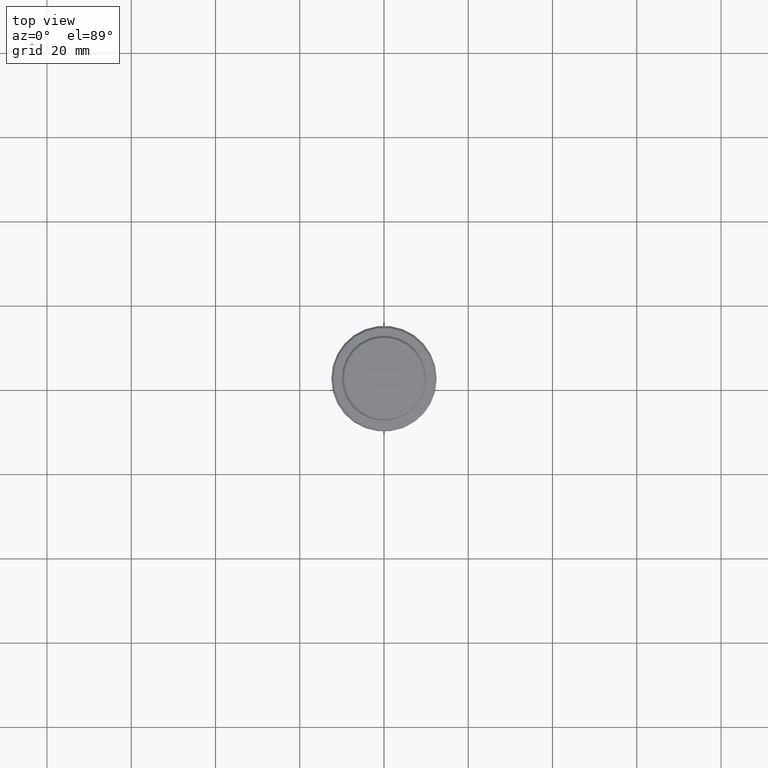
[diagram: clean part render]
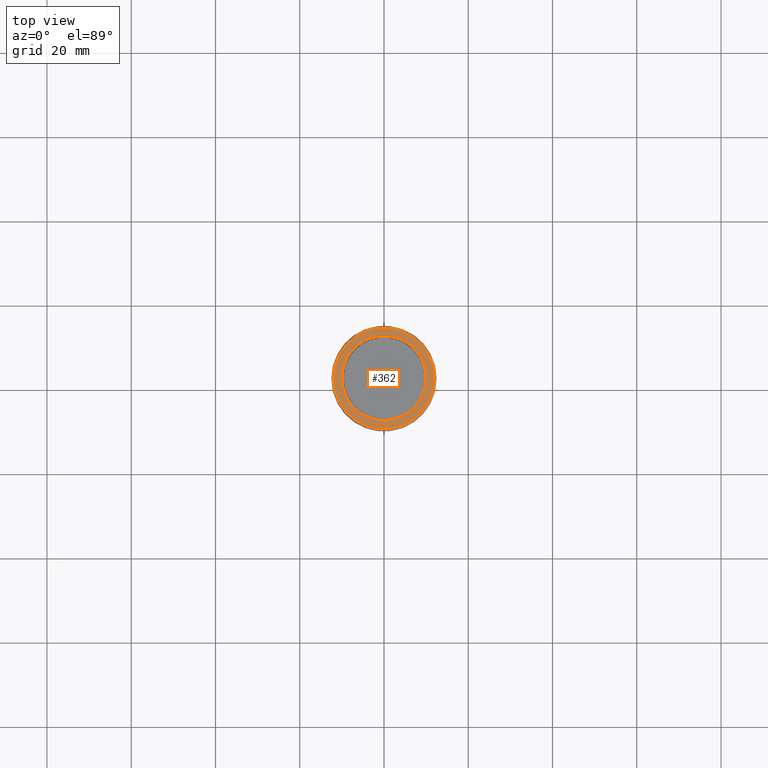
[diagram: same view with one face highlighted and labeled with its STEP entity id]
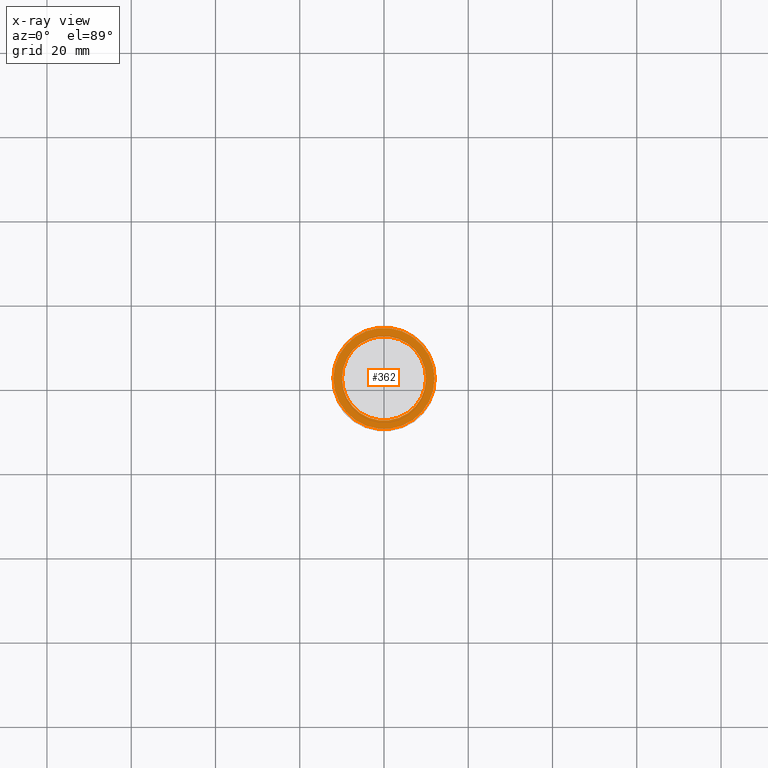
[diagram: x-ray of the same camera — body ghosted, the highlighted face saturated]
A machine part, top view. The second image highlights one B-rep face of the part: STEP entity #362.
The next image is the same camera in x-ray: the body ghosted, the highlighted face saturated — about 0% of this face is hidden behind the body in this view.
In plain terms, the highlighted planar face has unit normal (0, -0, 1).
Its self-contained STEP definition (entity closure, byte-faithful):
#8 = FACE_OUTER_BOUND ( 'NONE', #523, .T. ) ;
#18 = CARTESIAN_POINT ( 'NONE',  ( 9.999999999999992895, 0.000000000000000000, -9.000000000000000000 ) ) ;
#31 = DIRECTION ( 'NONE',  ( 0.000000000000000000, -0.000000000000000000, 1.000000000000000000 ) ) ;
#172 = DIRECTION ( 'NONE',  ( 0.000000000000000000, 0.000000000000000000, -1.000000000000000000 ) ) ;
#192 = EDGE_CURVE ( 'NONE', #1192, #1247, #440, .T. ) ;
#221 = CARTESIAN_POINT ( 'NONE',  ( 0.000000000000000000, 0.000000000000000000, -9.000000000000000000 ) ) ;
#250 = DIRECTION ( 'NONE',  ( -0.000000000000000000, -0.000000000000000000, 1.000000000000000000 ) ) ;
#270 = DIRECTION ( 'NONE',  ( 1.000000000000000000, 0.000000000000000000, 0.000000000000000000 ) ) ;
#299 = ORIENTED_EDGE ( 'NONE', *, *, #963, .T. ) ;
#323 = CARTESIAN_POINT ( 'NONE',  ( -9.999999999999992895, 1.224646799147352468E-15, -9.000000000000000000 ) ) ;
#362 = ADVANCED_FACE ( 'NONE', ( #8, #1003 ), #887, .T. ) ;
#397 = EDGE_CURVE ( 'NONE', #1036, #1339, #537, .T. ) ;
#399 = AXIS2_PLACEMENT_3D ( 'NONE', #221, #172, #645 ) ;
#427 = DIRECTION ( 'NONE',  ( 1.000000000000000000, 0.000000000000000000, 0.000000000000000000 ) ) ;
#440 = CIRCLE ( 'NONE', #399, 9.999999999999992895 ) ;
#505 = ORIENTED_EDGE ( 'NONE', *, *, #192, .T. ) ;
#523 = EDGE_LOOP ( 'NONE', ( #299, #1090 ) ) ;
#537 = CIRCLE ( 'NONE', #584, 12.00000000000001066 ) ;
#584 = AXIS2_PLACEMENT_3D ( 'NONE', #1008, #250, #684 ) ;
#621 = CARTESIAN_POINT ( 'NONE',  ( 12.00000000000001066, 1.500192328955508326E-15, -9.000000000000000000 ) ) ;
#645 = DIRECTION ( 'NONE',  ( 1.000000000000000000, 0.000000000000000000, 0.000000000000000000 ) ) ;
#665 = CARTESIAN_POINT ( 'NONE',  ( 0.000000000000000000, 9.499999999999992895, -9.000000000000000000 ) ) ;
#684 = DIRECTION ( 'NONE',  ( 1.000000000000000000, 0.000000000000000000, 0.000000000000000000 ) ) ;
#691 = EDGE_CURVE ( 'NONE', #1247, #1192, #906, .T. ) ;
#740 = AXIS2_PLACEMENT_3D ( 'NONE', #665, #31, #1340 ) ;
#797 = CARTESIAN_POINT ( 'NONE',  ( -12.00000000000001066, 0.000000000000000000, -9.000000000000000000 ) ) ;
#887 = PLANE ( 'NONE',  #740 ) ;
#894 = ORIENTED_EDGE ( 'NONE', *, *, #691, .T. ) ;
#906 = CIRCLE ( 'NONE', #1274, 9.999999999999992895 ) ;
#949 = EDGE_LOOP ( 'NONE', ( #505, #894 ) ) ;
#963 = EDGE_CURVE ( 'NONE', #1339, #1036, #1115, .T. ) ;
#972 = DIRECTION ( 'NONE',  ( 0.000000000000000000, 0.000000000000000000, -1.000000000000000000 ) ) ;
#1003 = FACE_BOUND ( 'NONE', #949, .T. ) ;
#1008 = CARTESIAN_POINT ( 'NONE',  ( 0.000000000000000000, 0.000000000000000000, -9.000000000000000000 ) ) ;
#1036 = VERTEX_POINT ( 'NONE', #621 ) ;
#1090 = ORIENTED_EDGE ( 'NONE', *, *, #397, .T. ) ;
#1115 = CIRCLE ( 'NONE', #1184, 12.00000000000001066 ) ;
#1184 = AXIS2_PLACEMENT_3D ( 'NONE', #1362, #1344, #270 ) ;
#1192 = VERTEX_POINT ( 'NONE', #18 ) ;
#1247 = VERTEX_POINT ( 'NONE', #323 ) ;
#1274 = AXIS2_PLACEMENT_3D ( 'NONE', #1295, #972, #427 ) ;
#1295 = CARTESIAN_POINT ( 'NONE',  ( 0.000000000000000000, 0.000000000000000000, -9.000000000000000000 ) ) ;
#1339 = VERTEX_POINT ( 'NONE', #797 ) ;
#1340 = DIRECTION ( 'NONE',  ( 1.000000000000000000, 0.000000000000000000, 0.000000000000000000 ) ) ;
#1344 = DIRECTION ( 'NONE',  ( -0.000000000000000000, -0.000000000000000000, 1.000000000000000000 ) ) ;
#1362 = CARTESIAN_POINT ( 'NONE',  ( 0.000000000000000000, 0.000000000000000000, -9.000000000000000000 ) ) ;